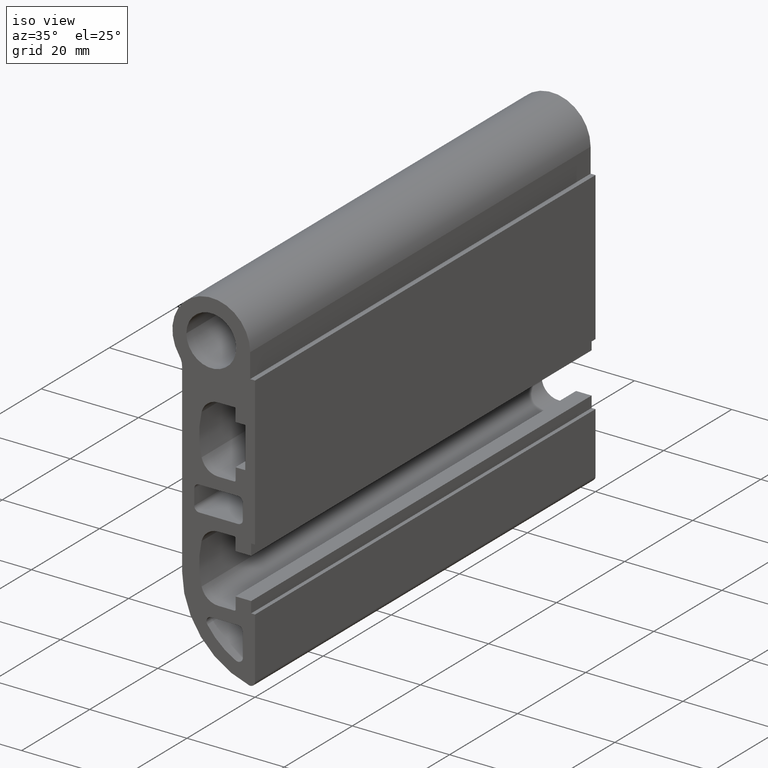
[diagram: clean part render]
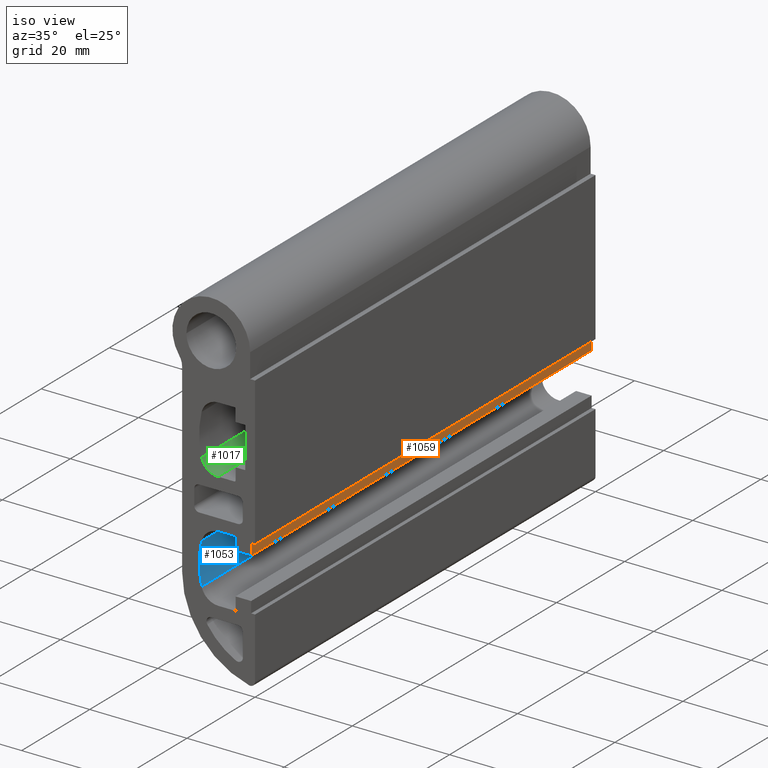
[diagram: same view with three faces highlighted in distinct colors, each labeled with its STEP entity id]
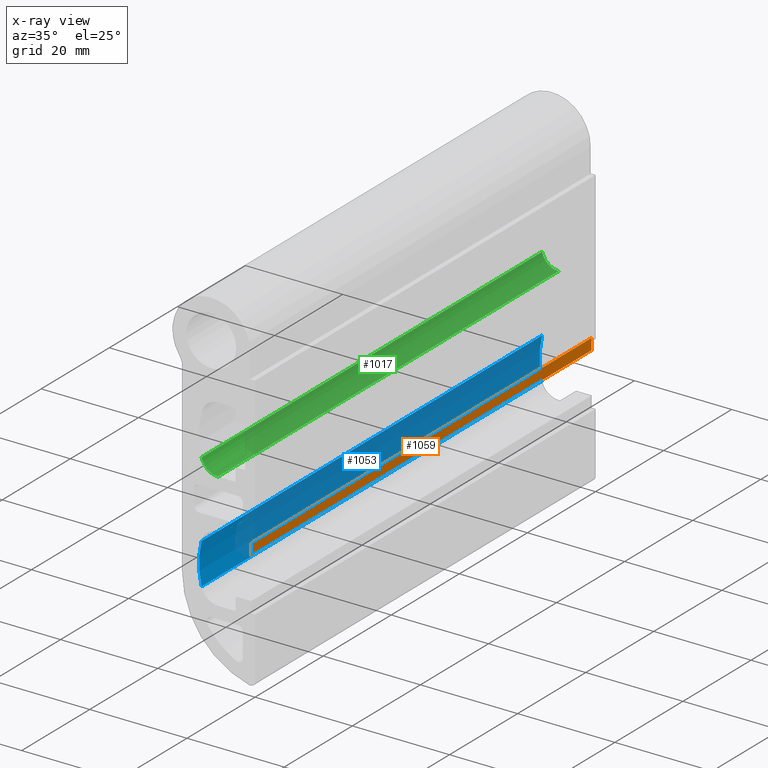
[diagram: x-ray of the same camera — body ghosted, the three highlighted faces saturated]
A machine part, iso view with three faces highlighted in distinct colors.
The next image is the same camera in x-ray (body ghosted, the three faces saturated) — at least one of them is partly hidden behind the body in this view.
Their STEP definitions:

[orange] entity #1059 — the highlighted planar face has unit normal (1, 0, -0).
#140=FACE_OUTER_BOUND('',#193,.T.);
#193=EDGE_LOOP('',(#867,#868,#869,#870));
#304=LINE('',#1781,#411);
#305=LINE('',#1784,#412);
#306=LINE('',#1786,#413);
#307=LINE('',#1787,#414);
#411=VECTOR('',#1471,10.);
#412=VECTOR('',#1474,10.);
#413=VECTOR('',#1475,10.);
#414=VECTOR('',#1476,10.);
#516=VERTEX_POINT('',#1777);
#517=VERTEX_POINT('',#1779);
#518=VERTEX_POINT('',#1783);
#519=VERTEX_POINT('',#1785);
#666=EDGE_CURVE('',#516,#517,#304,.T.);
#667=EDGE_CURVE('',#516,#518,#305,.T.);
#668=EDGE_CURVE('',#519,#517,#306,.T.);
#669=EDGE_CURVE('',#518,#519,#307,.T.);
#867=ORIENTED_EDGE('',*,*,#667,.F.);
#868=ORIENTED_EDGE('',*,*,#666,.T.);
#869=ORIENTED_EDGE('',*,*,#668,.F.);
#870=ORIENTED_EDGE('',*,*,#669,.F.);
#1006=PLANE('',#1178);
#1059=ADVANCED_FACE('',(#140),#1006,.T.);
#1178=AXIS2_PLACEMENT_3D('',#1782,#1472,#1473);
#1471=DIRECTION('',(0.,1.,0.));
#1472=DIRECTION('center_axis',(1.,0.,-6.03382078600627E-17));
#1473=DIRECTION('ref_axis',(-6.03382078600627E-17,0.,-1.));
#1474=DIRECTION('',(6.03382078600627E-17,0.,1.));
#1475=DIRECTION('',(-6.03382078600627E-17,0.,-1.));
#1476=DIRECTION('',(0.,1.,0.));
#1777=CARTESIAN_POINT('',(-0.800000000000013,0.,-32.8));
#1779=CARTESIAN_POINT('',(-0.800000000000013,100.,-32.8));
#1781=CARTESIAN_POINT('',(-0.800000000000013,0.,-32.8));
#1782=CARTESIAN_POINT('Origin',(-0.800000000000013,0.,-30.5));
#1783=CARTESIAN_POINT('',(-0.800000000000013,0.,-30.5));
#1784=CARTESIAN_POINT('',(-0.800000000000013,0.,-32.8));
#1785=CARTESIAN_POINT('',(-0.800000000000013,100.,-30.5));
#1786=CARTESIAN_POINT('',(-0.800000000000013,100.,-32.8));
#1787=CARTESIAN_POINT('',(-0.800000000000013,0.,-30.5));

[blue] entity #1053 — the highlighted cylindrical surface (partial cylindrical patch) has radius 18 mm, axis along (0, 1, 0).
#63=CIRCLE('',#1167,18.0000000000002);
#64=CIRCLE('',#1168,18.0000000000002);
#89=CYLINDRICAL_SURFACE('',#1166,18.0000000000002);
#134=FACE_OUTER_BOUND('',#187,.T.);
#187=EDGE_LOOP('',(#843,#844,#845,#846));
#292=LINE('',#1745,#399);
#293=LINE('',#1751,#400);
#399=VECTOR('',#1435,10.);
#400=VECTOR('',#1442,10.);
#504=VERTEX_POINT('',#1741);
#505=VERTEX_POINT('',#1743);
#506=VERTEX_POINT('',#1747);
#507=VERTEX_POINT('',#1749);
#648=EDGE_CURVE('',#504,#505,#292,.T.);
#649=EDGE_CURVE('',#504,#506,#63,.T.);
#650=EDGE_CURVE('',#507,#505,#64,.T.);
#651=EDGE_CURVE('',#506,#507,#293,.T.);
#843=ORIENTED_EDGE('',*,*,#649,.F.);
#844=ORIENTED_EDGE('',*,*,#648,.T.);
#845=ORIENTED_EDGE('',*,*,#650,.F.);
#846=ORIENTED_EDGE('',*,*,#651,.F.);
#1053=ADVANCED_FACE('',(#134),#89,.F.);
#1166=AXIS2_PLACEMENT_3D('',#1746,#1436,#1437);
#1167=AXIS2_PLACEMENT_3D('',#1748,#1438,#1439);
#1168=AXIS2_PLACEMENT_3D('',#1750,#1440,#1441);
#1435=DIRECTION('',(0.,1.,0.));
#1436=DIRECTION('center_axis',(0.,1.,0.));
#1437=DIRECTION('ref_axis',(-0.972120278519913,0.,-0.234482758620687));
#1438=DIRECTION('center_axis',(0.,1.,0.));
#1439=DIRECTION('ref_axis',(-0.972120278519913,0.,-0.234482758620687));
#1440=DIRECTION('center_axis',(0.,-1.,0.));
#1441=DIRECTION('ref_axis',(-0.972120278519913,0.,-0.234482758620687));
#1442=DIRECTION('',(0.,1.,0.));
#1741=CARTESIAN_POINT('',(-10.9884209748197,0.,-41.2206896551724));
#1743=CARTESIAN_POINT('',(-10.9884209748197,100.,-41.2206896551724));
#1745=CARTESIAN_POINT('',(-10.9884209748197,0.,-41.2206896551724));
#1746=CARTESIAN_POINT('Origin',(6.50974403853893,0.,-37.));
#1747=CARTESIAN_POINT('',(-10.9884209748197,0.,-32.7793103448276));
#1748=CARTESIAN_POINT('Origin',(6.50974403853893,0.,-37.));
#1749=CARTESIAN_POINT('',(-10.9884209748197,100.,-32.7793103448276));
#1750=CARTESIAN_POINT('Origin',(6.50974403853893,100.,-37.));
#1751=CARTESIAN_POINT('',(-10.9884209748197,0.,-32.7793103448276));

[green] entity #1017 — the highlighted cylindrical surface (edge-blend (fillet) strip) has radius 3.5 mm, axis along (0, 1, 0).
#29=CIRCLE('',#1097,3.5);
#30=CIRCLE('',#1098,3.5);
#72=CYLINDRICAL_SURFACE('',#1096,3.5);
#98=FACE_OUTER_BOUND('',#151,.T.);
#151=EDGE_LOOP('',(#699,#700,#701,#702));
#218=LINE('',#1528,#325);
#219=LINE('',#1534,#326);
#325=VECTOR('',#1219,10.);
#326=VECTOR('',#1226,10.);
#432=VERTEX_POINT('',#1525);
#433=VERTEX_POINT('',#1527);
#434=VERTEX_POINT('',#1531);
#435=VERTEX_POINT('',#1533);
#539=EDGE_CURVE('',#432,#433,#218,.T.);
#541=EDGE_CURVE('',#434,#432,#29,.T.);
#542=EDGE_CURVE('',#434,#435,#219,.T.);
#543=EDGE_CURVE('',#433,#435,#30,.T.);
#699=ORIENTED_EDGE('',*,*,#541,.F.);
#700=ORIENTED_EDGE('',*,*,#542,.T.);
#701=ORIENTED_EDGE('',*,*,#543,.F.);
#702=ORIENTED_EDGE('',*,*,#539,.F.);
#1017=ADVANCED_FACE('',(#98),#72,.F.);
#1096=AXIS2_PLACEMENT_3D('',#1530,#1222,#1223);
#1097=AXIS2_PLACEMENT_3D('',#1532,#1224,#1225);
#1098=AXIS2_PLACEMENT_3D('',#1535,#1227,#1228);
#1219=DIRECTION('',(0.,1.,0.));
#1222=DIRECTION('center_axis',(0.,1.,0.));
#1223=DIRECTION('ref_axis',(6.34413156928662E-16,0.,-1.));
#1224=DIRECTION('center_axis',(-1.09746301910575E-16,1.,-1.0166927632176E-17));
#1225=DIRECTION('ref_axis',(6.34413156928662E-16,0.,-1.));
#1226=DIRECTION('',(0.,1.,0.));
#1227=DIRECTION('center_axis',(1.09746301910575E-16,-1.,1.0166927632176E-17));
#1228=DIRECTION('ref_axis',(6.34413156928662E-16,0.,-1.));
#1525=CARTESIAN_POINT('',(-10.9884209748197,0.,-17.2206896551724));
#1527=CARTESIAN_POINT('',(-10.9884209748197,100.,-17.2206896551724));
#1528=CARTESIAN_POINT('',(-10.9884209748197,0.,-17.2206896551724));
#1530=CARTESIAN_POINT('Origin',(-7.586,0.,-16.4));
#1531=CARTESIAN_POINT('',(-7.586,0.,-19.9));
#1532=CARTESIAN_POINT('Origin',(-7.586,0.,-16.4));
#1533=CARTESIAN_POINT('',(-7.586,100.,-19.9));
#1534=CARTESIAN_POINT('',(-7.586,0.,-19.9));
#1535=CARTESIAN_POINT('Origin',(-7.586,100.,-16.4));